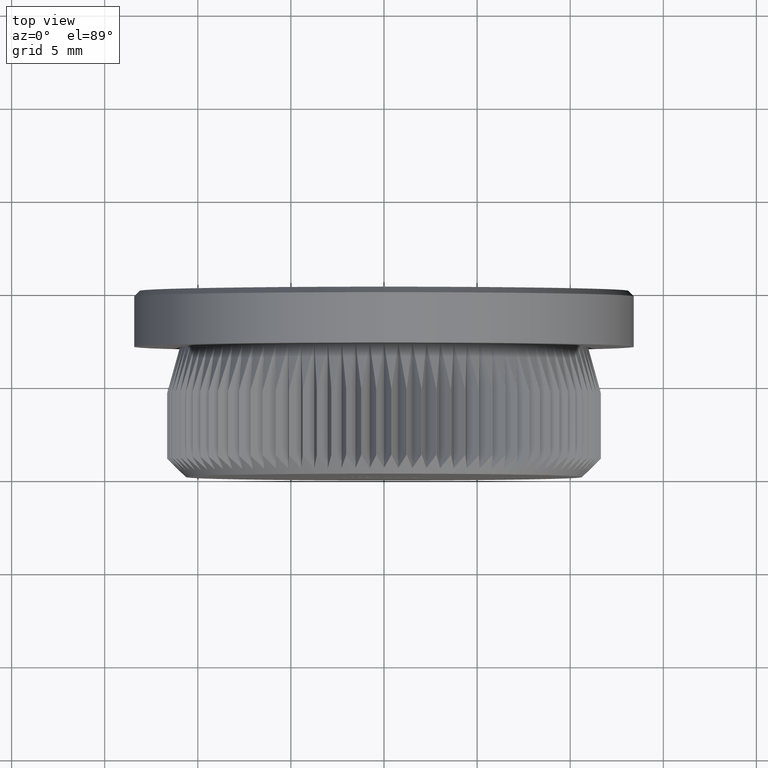
[diagram: clean part render]
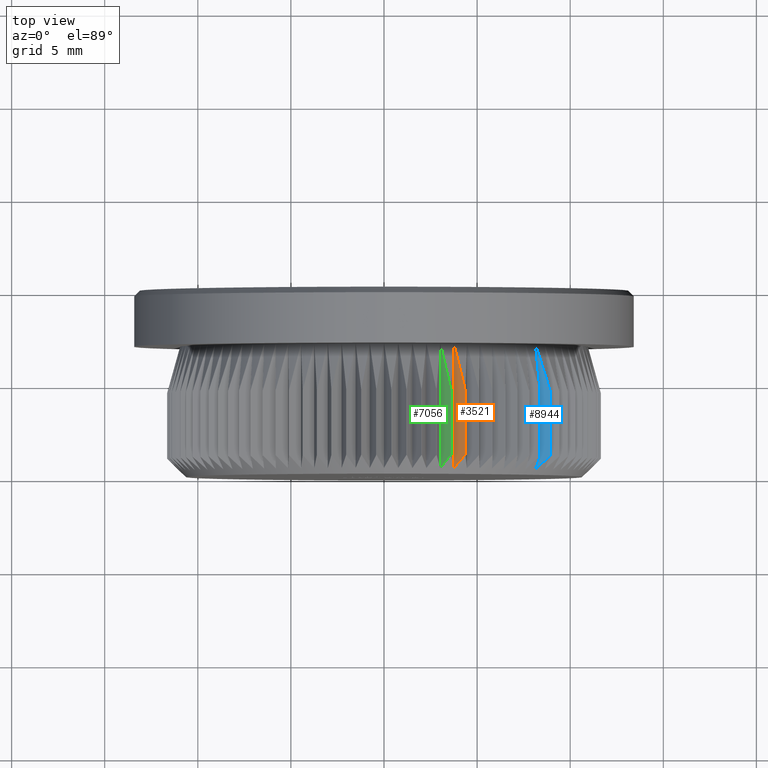
[diagram: same view with three faces highlighted in distinct colors, each labeled with its STEP entity id]
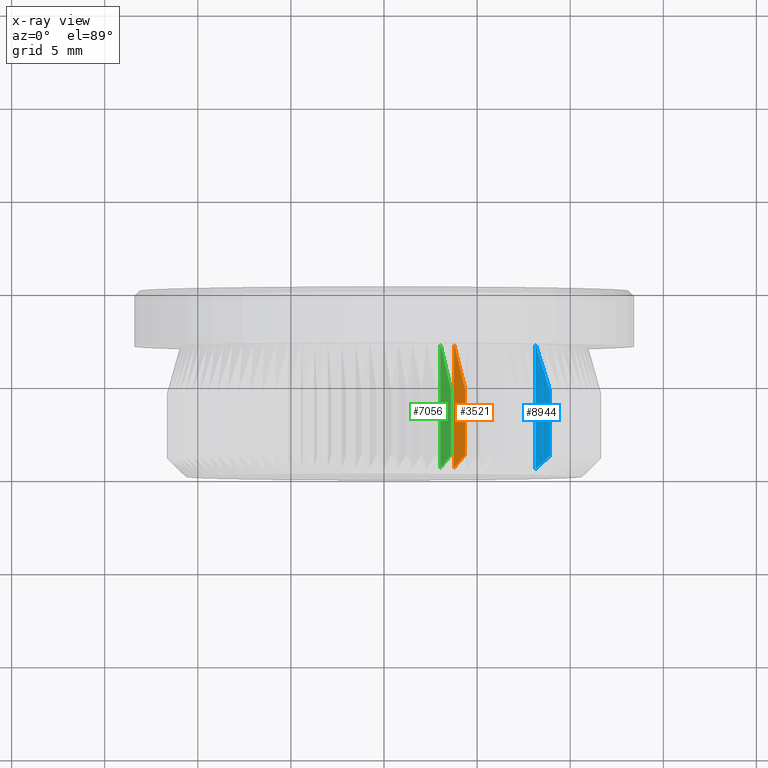
[diagram: x-ray of the same camera — body ghosted, the three highlighted faces saturated]
A machine part, top view with three faces highlighted in distinct colors.
The next image is the same camera in x-ray (body ghosted, the three faces saturated) — at least one of them is partly hidden behind the body in this view.
Their STEP definitions:

[orange] entity #3521 — the highlighted planar face has unit normal (0.6428, 0, -0.766).
#427 = VERTEX_POINT ( 'NONE', #24886 ) ;
#1971 = VERTEX_POINT ( 'NONE', #11007 ) ;
#2119 = DIRECTION ( 'NONE',  ( 0.6427876096865498000, 0.0000000000000000000, -0.7660444431189692400 ) ) ;
#2162 = EDGE_CURVE ( 'NONE', #11256, #1971, #9707, .T. ) ;
#3521 = ADVANCED_FACE ( 'NONE', ( #11788 ), #21653, .F. ) ;
#3847 = CARTESIAN_POINT ( 'NONE',  ( 3.950360126044720800, 0.5320265769154333100, 10.46185063387594700 ) ) ;
#3941 = CARTESIAN_POINT ( 'NONE',  ( 3.951325027959511800, 6.167437807686545700, 10.46266028271677100 ) ) ;
#3987 = DIRECTION ( 'NONE',  ( -0.0000000000000000000, -1.000000000000000000, -0.0000000000000000000 ) ) ;
#4021 = CARTESIAN_POINT ( 'NONE',  ( 4.155554977563038000, 5.334039586568212400, 10.63402955810445000 ) ) ;
#4978 = AXIS2_PLACEMENT_3D ( 'NONE', #14113, #2119, #7955 ) ;
#7266 = ORIENTED_EDGE ( 'NONE', *, *, #9106, .T. ) ;
#7365 = CARTESIAN_POINT ( 'NONE',  ( 4.358225607115967300, 1.000000000000009800, 10.80409040861278100 ) ) ;
#7755 = VERTEX_POINT ( 'NONE', #21596 ) ;
#7845 = ORIENTED_EDGE ( 'NONE', *, *, #2162, .F. ) ;
#7955 = DIRECTION ( 'NONE',  ( -0.7660444431189692400, 0.0000000000000000000, -0.6427876096865498000 ) ) ;
#8058 = LINE ( 'NONE', #8760, #24259 ) ;
#8760 = CARTESIAN_POINT ( 'NONE',  ( 3.745120569415943700, 10.00099999999999900, 10.28963419760574600 ) ) ;
#9106 = EDGE_CURVE ( 'NONE', #7755, #1971, #8058, .T. ) ;
#9707 = B_SPLINE_CURVE_WITH_KNOTS ( 'NONE', 3,
 ( #15759, #11637, #3847, #17586 ),
 .UNSPECIFIED., .F., .F.,
 ( 4, 4 ),
 ( 3.022192676038876400E-007, 0.001063581571223976000 ),
 .UNSPECIFIED. ) ;
#9799 = EDGE_CURVE ( 'NONE', #7755, #427, #22735, .T. ) ;
#10149 = EDGE_CURVE ( 'NONE', #427, #11256, #15060, .T. ) ;
#11007 = CARTESIAN_POINT ( 'NONE',  ( 3.745120569415943700, 0.3000000000000108700, 10.28963419760574600 ) ) ;
#11161 = CARTESIAN_POINT ( 'NONE',  ( 4.358225607115967300, 10.00099999999999900, 10.80409040861278300 ) ) ;
#11256 = VERTEX_POINT ( 'NONE', #7365 ) ;
#11637 = CARTESIAN_POINT ( 'NONE',  ( 4.154673787754340700, 0.7654535480586476300, 10.63329015206097400 ) ) ;
#11788 = FACE_OUTER_BOUND ( 'NONE', #20452, .T. ) ;
#12719 = DIRECTION ( 'NONE',  ( -0.0000000000000000000, -1.000000000000000000, -0.0000000000000000000 ) ) ;
#14113 = CARTESIAN_POINT ( 'NONE',  ( 4.358225607115967300, 10.00099999999999900, 10.80409040861278300 ) ) ;
#15060 = LINE ( 'NONE', #11161, #16900 ) ;
#15759 = CARTESIAN_POINT ( 'NONE',  ( 4.358225607115967300, 1.000000000000009800, 10.80409040861278100 ) ) ;
#16900 = VECTOR ( 'NONE', #3987, 1000.000000000000000 ) ;
#17586 = CARTESIAN_POINT ( 'NONE',  ( 3.745120569415943700, 0.3000000000000108700, 10.28963419760574600 ) ) ;
#17590 = CARTESIAN_POINT ( 'NONE',  ( 4.358225607115967300, 4.500000000000000900, 10.80409040861278100 ) ) ;
#17675 = CARTESIAN_POINT ( 'NONE',  ( 3.745120569415943700, 6.999999999999994700, 10.28963419760574600 ) ) ;
#18464 = ORIENTED_EDGE ( 'NONE', *, *, #9799, .F. ) ;
#20452 = EDGE_LOOP ( 'NONE', ( #7266, #7845, #20661, #18464 ) ) ;
#20661 = ORIENTED_EDGE ( 'NONE', *, *, #10149, .F. ) ;
#21596 = CARTESIAN_POINT ( 'NONE',  ( 3.745120569415943700, 6.999999999999994700, 10.28963419760574600 ) ) ;
#21653 = PLANE ( 'NONE',  #4978 ) ;
#22735 = B_SPLINE_CURVE_WITH_KNOTS ( 'NONE', 3,
 ( #17675, #3941, #4021, #17590 ),
 .UNSPECIFIED., .F., .F.,
 ( 4, 4 ),
 ( 2.101927081585897700E-007, 0.002625198379404783200 ),
 .UNSPECIFIED. ) ;
#24259 = VECTOR ( 'NONE', #12719, 1000.000000000000000 ) ;
#24886 = CARTESIAN_POINT ( 'NONE',  ( 4.358225607115967300, 4.500000000000000900, 10.80409040861278100 ) ) ;

[blue] entity #8944 — the highlighted planar face has unit normal (0.2079, 0, -0.9781).
#472 = EDGE_LOOP ( 'NONE', ( #3198, #4185, #16182, #3884 ) ) ;
#760 = VERTEX_POINT ( 'NONE', #1344 ) ;
#1344 = CARTESIAN_POINT ( 'NONE',  ( 8.137435838977380000, 6.999999999999999100, 7.326980139629595700 ) ) ;
#2018 = EDGE_CURVE ( 'NONE', #760, #17769, #13350, .T. ) ;
#2738 = CARTESIAN_POINT ( 'NONE',  ( 8.920298017550679900, 1.000000000000009800, 7.493382632568652100 ) ) ;
#2759 = AXIS2_PLACEMENT_3D ( 'NONE', #10064, #4342, #9976 ) ;
#2918 = VECTOR ( 'NONE', #20868, 1000.000000000000000 ) ;
#3198 = ORIENTED_EDGE ( 'NONE', *, *, #2018, .T. ) ;
#3884 = ORIENTED_EDGE ( 'NONE', *, *, #4122, .F. ) ;
#4122 = EDGE_CURVE ( 'NONE', #760, #18452, #19040, .T. ) ;
#4185 = ORIENTED_EDGE ( 'NONE', *, *, #19729, .F. ) ;
#4342 = DIRECTION ( 'NONE',  ( 0.2079116908177721900, 0.0000000000000000000, -0.9781476007338029100 ) ) ;
#6315 = CARTESIAN_POINT ( 'NONE',  ( 8.400734395864999400, 6.167437807686549300, 7.382945975574311400 ) ) ;
#7976 = CARTESIAN_POINT ( 'NONE',  ( 8.137435838977380000, 6.999999999999999100, 7.326980139629595700 ) ) ;
#8944 = ADVANCED_FACE ( 'NONE', ( #24540 ), #21964, .F. ) ;
#9933 = CARTESIAN_POINT ( 'NONE',  ( 8.661511739786870800, 5.334039586568212400, 7.438375911159789100 ) ) ;
#9976 = DIRECTION ( 'NONE',  ( -0.9781476007338028000, 0.0000000000000000000, -0.2079116908177721700 ) ) ;
#10064 = CARTESIAN_POINT ( 'NONE',  ( 8.920298017550678100, 10.00099999999999900, 7.493382632568650300 ) ) ;
#10067 = VECTOR ( 'NONE', #13606, 1000.000000000000000 ) ;
#10351 = CARTESIAN_POINT ( 'NONE',  ( 8.920298017550679900, 1.000000000000009800, 7.493382632568652100 ) ) ;
#10951 = CARTESIAN_POINT ( 'NONE',  ( 8.920298017550678100, 4.500000000000000900, 7.493382632568651200 ) ) ;
#12354 = CARTESIAN_POINT ( 'NONE',  ( 8.137435838977380000, 0.3000000000000099300, 7.326980139629596600 ) ) ;
#13041 = EDGE_CURVE ( 'NONE', #18452, #17655, #18088, .T. ) ;
#13350 = LINE ( 'NONE', #21125, #2918 ) ;
#13606 = DIRECTION ( 'NONE',  ( -0.0000000000000000000, -1.000000000000000000, -0.0000000000000000000 ) ) ;
#13890 = CARTESIAN_POINT ( 'NONE',  ( 8.920298017550678100, 4.500000000000000900, 7.493382632568651200 ) ) ;
#16182 = ORIENTED_EDGE ( 'NONE', *, *, #13041, .F. ) ;
#16785 = CARTESIAN_POINT ( 'NONE',  ( 8.137435838977380000, 0.3000000000000099300, 7.326980139629596600 ) ) ;
#17404 = CARTESIAN_POINT ( 'NONE',  ( 8.920298017550678100, 10.00099999999999900, 7.493382632568650300 ) ) ;
#17655 = VERTEX_POINT ( 'NONE', #10351 ) ;
#17769 = VERTEX_POINT ( 'NONE', #16785 ) ;
#18088 = LINE ( 'NONE', #17404, #10067 ) ;
#18285 = CARTESIAN_POINT ( 'NONE',  ( 8.660386565255668900, 0.7654535480586478500, 7.438136747930157000 ) ) ;
#18452 = VERTEX_POINT ( 'NONE', #10951 ) ;
#19040 = B_SPLINE_CURVE_WITH_KNOTS ( 'NONE', 3,
 ( #7976, #6315, #9933, #13890 ),
 .UNSPECIFIED., .F., .F.,
 ( 4, 4 ),
 ( 2.101927081531396700E-007, 0.002625198379404782400 ),
 .UNSPECIFIED. ) ;
#19729 = EDGE_CURVE ( 'NONE', #17655, #17769, #23653, .T. ) ;
#20868 = DIRECTION ( 'NONE',  ( -0.0000000000000000000, -1.000000000000000000, -0.0000000000000000000 ) ) ;
#21125 = CARTESIAN_POINT ( 'NONE',  ( 8.137435838977380000, 10.00099999999999900, 7.326980139629595700 ) ) ;
#21964 = PLANE ( 'NONE',  #2759 ) ;
#22193 = CARTESIAN_POINT ( 'NONE',  ( 8.399502330935380500, 0.5320265769154339800, 7.382684092089117000 ) ) ;
#23653 = B_SPLINE_CURVE_WITH_KNOTS ( 'NONE', 3,
 ( #2738, #18285, #22193, #12354 ),
 .UNSPECIFIED., .F., .F.,
 ( 4, 4 ),
 ( 2.727260438442979000E-007, 0.001063552078000260700 ),
 .UNSPECIFIED. ) ;
#24540 = FACE_OUTER_BOUND ( 'NONE', #472, .T. ) ;

[green] entity #7056 — the highlighted planar face has unit normal (0.6947, 0, -0.7193).
#175 = VERTEX_POINT ( 'NONE', #19822 ) ;
#1176 = EDGE_CURVE ( 'NONE', #5855, #175, #4075, .T. ) ;
#3320 = DIRECTION ( 'NONE',  ( -0.7193398003386416400, 0.0000000000000000000, -0.6946583704590072500 ) ) ;
#3596 = CARTESIAN_POINT ( 'NONE',  ( 3.402812385914638900, 0.7654535480586467400, 10.89720338466873700 ) ) ;
#3778 = CARTESIAN_POINT ( 'NONE',  ( 3.593953939663131700, 1.000000000000009800, 11.08178663752284600 ) ) ;
#3895 = EDGE_CURVE ( 'NONE', #20445, #13128, #17977, .T. ) ;
#4035 = CARTESIAN_POINT ( 'NONE',  ( 3.018229046196008200, 10.00099999999999900, 10.52581557052463000 ) ) ;
#4075 = B_SPLINE_CURVE_WITH_KNOTS ( 'NONE', 3,
 ( #17550, #21273, #5769, #23219 ),
 .UNSPECIFIED., .F., .F.,
 ( 4, 4 ),
 ( 2.101927081497251200E-007, 0.002625198379404782800 ),
 .UNSPECIFIED. ) ;
#5769 = CARTESIAN_POINT ( 'NONE',  ( 3.403639850830991500, 5.334039586568214200, 10.89800245825000700 ) ) ;
#5855 = VERTEX_POINT ( 'NONE', #9419 ) ;
#6106 = VECTOR ( 'NONE', #6806, 1000.000000000000000 ) ;
#6806 = DIRECTION ( 'NONE',  ( -0.0000000000000000000, -1.000000000000000000, -0.0000000000000000000 ) ) ;
#7056 = ADVANCED_FACE ( 'NONE', ( #16686 ), #17237, .F. ) ;
#8711 = CARTESIAN_POINT ( 'NONE',  ( 3.593953939663130800, 10.00099999999999900, 11.08178663752284400 ) ) ;
#9419 = CARTESIAN_POINT ( 'NONE',  ( 3.018229046196008200, 7.000000000000003600, 10.52581557052463000 ) ) ;
#9499 = CARTESIAN_POINT ( 'NONE',  ( 3.210955438265152400, 0.5320265769154328700, 10.71192928395487500 ) ) ;
#11383 = CARTESIAN_POINT ( 'NONE',  ( 3.018229046196007700, 0.3000000000000084800, 10.52581557052463000 ) ) ;
#11965 = ORIENTED_EDGE ( 'NONE', *, *, #1176, .F. ) ;
#12193 = EDGE_CURVE ( 'NONE', #5855, #13128, #15642, .T. ) ;
#13128 = VERTEX_POINT ( 'NONE', #15837 ) ;
#14688 = VECTOR ( 'NONE', #19467, 1000.000000000000000 ) ;
#15036 = EDGE_LOOP ( 'NONE', ( #17003, #18393, #20118, #11965 ) ) ;
#15084 = DIRECTION ( 'NONE',  ( 0.6946583704590072500, 0.0000000000000000000, -0.7193398003386416400 ) ) ;
#15642 = LINE ( 'NONE', #4035, #14688 ) ;
#15837 = CARTESIAN_POINT ( 'NONE',  ( 3.018229046196007700, 0.3000000000000084800, 10.52581557052463000 ) ) ;
#16686 = FACE_OUTER_BOUND ( 'NONE', #15036, .T. ) ;
#17003 = ORIENTED_EDGE ( 'NONE', *, *, #12193, .T. ) ;
#17237 = PLANE ( 'NONE',  #22693 ) ;
#17550 = CARTESIAN_POINT ( 'NONE',  ( 3.018229046196008200, 7.000000000000003600, 10.52581557052463000 ) ) ;
#17977 = B_SPLINE_CURVE_WITH_KNOTS ( 'NONE', 3,
 ( #3778, #3596, #9499, #11383 ),
 .UNSPECIFIED., .F., .F.,
 ( 4, 4 ),
 ( 3.022192674615100300E-007, 0.001063581571223799700 ),
 .UNSPECIFIED. ) ;
#18393 = ORIENTED_EDGE ( 'NONE', *, *, #3895, .F. ) ;
#19467 = DIRECTION ( 'NONE',  ( -0.0000000000000000000, -1.000000000000000000, -0.0000000000000000000 ) ) ;
#19822 = CARTESIAN_POINT ( 'NONE',  ( 3.593953939663131300, 4.500000000000000900, 11.08178663752284400 ) ) ;
#20118 = ORIENTED_EDGE ( 'NONE', *, *, #25285, .F. ) ;
#20445 = VERTEX_POINT ( 'NONE', #24520 ) ;
#21053 = CARTESIAN_POINT ( 'NONE',  ( 3.593953939663130800, 10.00099999999999900, 11.08178663752284400 ) ) ;
#21273 = CARTESIAN_POINT ( 'NONE',  ( 3.211861511479267700, 6.167437807686551900, 10.71280426868690200 ) ) ;
#22693 = AXIS2_PLACEMENT_3D ( 'NONE', #21053, #15084, #3320 ) ;
#23219 = CARTESIAN_POINT ( 'NONE',  ( 3.593953939663131300, 4.500000000000000900, 11.08178663752284400 ) ) ;
#23859 = LINE ( 'NONE', #8711, #6106 ) ;
#24520 = CARTESIAN_POINT ( 'NONE',  ( 3.593953939663131700, 1.000000000000009800, 11.08178663752284600 ) ) ;
#25285 = EDGE_CURVE ( 'NONE', #175, #20445, #23859, .T. ) ;